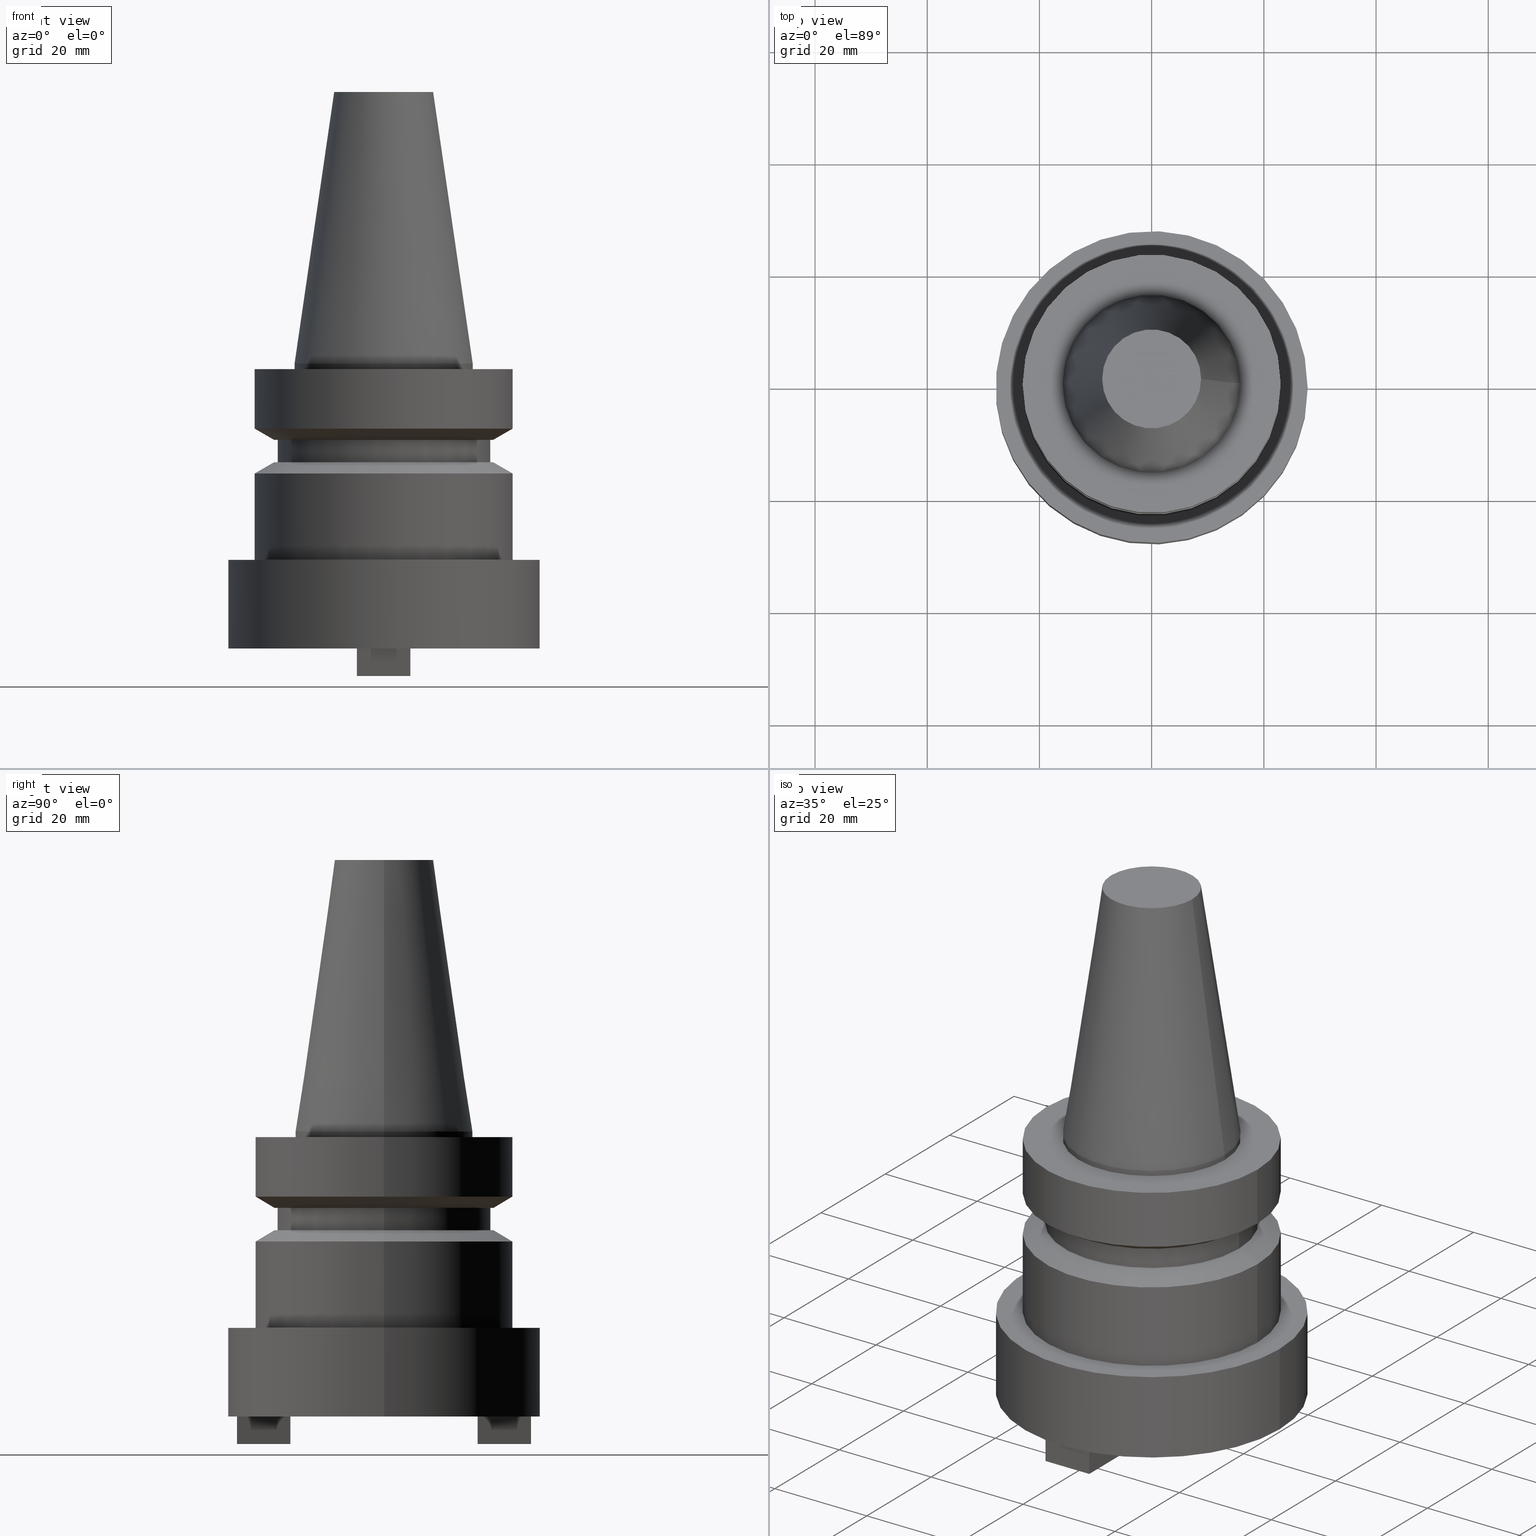
[diagram: canonical four-view strip — front | top / right | iso, engineering-drawing reading convention]
A machine part, canonical four-view strip (front | top / right | iso — engineering-drawing reading convention). The complete STEP part file that produces these views, byte-faithful:
ISO-10303-21;
HEADER;
FILE_DESCRIPTION (( 'STEP AP203' ),
    '1' );
FILE_NAME ('BBT30-SMC1_000-2.stp',
    '2022-03-09T16:43:09',
    ( '' ),
    ( '' ),
    'SwSTEP 2.0',
    'SolidWorks 2021',
    '' );
FILE_SCHEMA (( 'CONFIG_CONTROL_DESIGN' ));
ENDSEC;

DATA;
#1 = AXIS2_PLACEMENT_3D ( 'NONE', #606, #81, #288 ) ;
#2 = LOCAL_TIME ( 10, 43, 9.000000000000000000, #330 ) ;
#3 = VERTEX_POINT ( 'NONE', #572 ) ;
#4 = DIRECTION ( 'NONE',  ( -1.055760352640659537E-14, 1.000000000000000000, 0.000000000000000000 ) ) ;
#5 = ORIENTED_EDGE ( 'NONE', *, *, #506, .F. ) ;
#6 = CARTESIAN_POINT ( 'NONE',  ( -4.765000000000005009, 4.336808689942022666E-16, -55.70000000000000284 ) ) ;
#7 = EDGE_LOOP ( 'NONE', ( #525 ) ) ;
#8 = DIRECTION ( 'NONE',  ( 1.000000000000000000, 0.000000000000000000, 0.000000000000000000 ) ) ;
#9 = AXIS2_PLACEMENT_3D ( 'NONE', #487, #491, #226 ) ;
#10 = AXIS2_PLACEMENT_3D ( 'NONE', #590, #228, #594 ) ;
#11 = DIRECTION ( 'NONE',  ( -0.000000000000000000, -0.000000000000000000, 1.000000000000000000 ) ) ;
#12 = ADVANCED_FACE ( 'NONE', ( #304 ), #50, .T. ) ;
#13 = CARTESIAN_POINT ( 'NONE',  ( -4.765000000000003233, 16.67999999999999972, -50.79999999999999716 ) ) ;
#14 = FACE_BOUND ( 'NONE', #294, .T. ) ;
#15 = FACE_BOUND ( 'NONE', #342, .T. ) ;
#16 = CARTESIAN_POINT ( 'NONE',  ( -4.765000000000003233, -26.20999999999997598, -55.70000000000000284 ) ) ;
#17 = ORIENTED_EDGE ( 'NONE', *, *, #575, .T. ) ;
#18 = EDGE_CURVE ( 'NONE', #672, #250, #177, .T. ) ;
#19 = DIRECTION ( 'NONE',  ( 0.000000000000000000, -0.000000000000000000, 1.000000000000000000 ) ) ;
#20 = EDGE_CURVE ( 'NONE', #110, #250, #379, .T. ) ;
#22 = VECTOR ( 'NONE', #592, 1000.000000000000000 ) ;
#21 = PLANE ( 'NONE',  #668 ) ;
#23 = VECTOR ( 'NONE', #217, 1000.000000000000000 ) ;
#24 = CARTESIAN_POINT ( 'NONE',  ( 0.000000000000000000, 22.99999999999998934, -22.00000000000000000 ) ) ;
#25 = CARTESIAN_POINT ( 'NONE',  ( 0.000000000000000000, 0.000000000000000000, 0.000000000000000000 ) ) ;
#26 = CARTESIAN_POINT ( 'NONE',  ( -4.765000000000005009, 4.336808689942022666E-16, -55.70000000000000284 ) ) ;
#27 = PERSON_AND_ORGANIZATION_ROLE ( 'design_supplier' ) ;
#28 = EDGE_CURVE ( 'NONE', #58, #110, #281, .T. ) ;
#29 = DIRECTION ( 'NONE',  ( -9.101382350350614961E-17, -1.000000000000000000, 0.000000000000000000 ) ) ;
#30 = ORIENTED_EDGE ( 'NONE', *, *, #300, .F. ) ;
#31 = DIRECTION ( 'NONE',  ( 9.101382350350512656E-17, -1.000000000000000000, 0.000000000000000000 ) ) ;
#32 = DIRECTION ( 'NONE',  ( -1.000000000000000000, 0.000000000000000000, -0.000000000000000000 ) ) ;
#33 = AXIS2_PLACEMENT_3D ( 'NONE', #39, #445, #85 ) ;
#34 = EDGE_LOOP ( 'NONE', ( #266, #313, #5, #155 ) ) ;
#35 = AXIS2_PLACEMENT_3D ( 'NONE', #634, #167, #62 ) ;
#36 = CARTESIAN_POINT ( 'NONE',  ( 6.072442304153862371E-15, 16.67999999999999972, -55.70000000000000284 ) ) ;
#37 = CARTESIAN_POINT ( 'NONE',  ( 4.764999999999996128, -26.20999999999998309, -55.70000000000000284 ) ) ;
#38 = ORIENTED_EDGE ( 'NONE', *, *, #235, .T. ) ;
#39 = CARTESIAN_POINT ( 'NONE',  ( 0.000000000000000000, 0.000000000000000000, -1.000000000000000888 ) ) ;
#40 = EDGE_LOOP ( 'NONE', ( #408 ) ) ;
#41 = CARTESIAN_POINT ( 'NONE',  ( 22.99999999999999645, 0.000000000000000000, -1.000000000000000888 ) ) ;
#42 = ADVANCED_FACE ( 'NONE', ( #67, #638 ), #656, .T. ) ;
#43 = ADVANCED_FACE ( 'NONE', ( #14, #430, #168, #165 ), #483, .F. ) ;
#44 = PLANE ( 'NONE',  #579 ) ;
#45 = ORIENTED_EDGE ( 'NONE', *, *, #20, .T. ) ;
#46 = VERTEX_POINT ( 'NONE', #258 ) ;
#47 = CLOSED_SHELL ( 'NONE', ( #43, #577, #82, #158, #94, #103, #533, #504, #42, #400, #678, #213, #630, #212, #378, #597, #675, #299, #471, #68, #118, #12, #295, #287, #100, #326 ) ) ;
#48 = LOCAL_TIME ( 10, 43, 9.000000000000000000, #539 ) ;
#49 = ORIENTED_EDGE ( 'NONE', *, *, #268, .F. ) ;
#50 = PLANE ( 'NONE',  #560 ) ;
#51 = ORIENTED_EDGE ( 'NONE', *, *, #166, .T. ) ;
#52 = UNCERTAINTY_MEASURE_WITH_UNIT (LENGTH_MEASURE( 1.000000000000000082E-05 ), #355, 'distance_accuracy_value', 'NONE');
#53 = FACE_OUTER_BOUND ( 'NONE', #96, .T. ) ;
#54 = CIRCLE ( 'NONE', #310, 5.764999999999999680 ) ;
#55 = CC_DESIGN_APPROVAL ( #311, ( #598 ) ) ;
#56 = ORIENTED_EDGE ( 'NONE', *, *, #247, .F. ) ;
#57 = DIRECTION ( 'NONE',  ( 0.000000000000000000, 0.000000000000000000, -1.000000000000000000 ) ) ;
#58 = VERTEX_POINT ( 'NONE', #535 ) ;
#59 = PLANE ( 'NONE',  #458 ) ;
#60 = EDGE_CURVE ( 'NONE', #512, #512, #128, .T. ) ;
#61 = PLANE ( 'NONE',  #117 ) ;
#62 = DIRECTION ( 'NONE',  ( 1.000000000000000000, 0.000000000000000000, 0.000000000000000000 ) ) ;
#63 = CIRCLE ( 'NONE', #1, 23.00000000000000000 ) ;
#64 = VECTOR ( 'NONE', #183, 1000.000000000000000 ) ;
#65 = CARTESIAN_POINT ( 'NONE',  ( 0.000000000000000000, 0.000000000000000000, -13.60014200631680303 ) ) ;
#66 = FACE_OUTER_BOUND ( 'NONE', #292, .T. ) ;
#67 = FACE_OUTER_BOUND ( 'NONE', #511, .T. ) ;
#68 = ADVANCED_FACE ( 'NONE', ( #371 ), #70, .F. ) ;
#69 = CARTESIAN_POINT ( 'NONE',  ( 4.764999999999993463, 4.336808689942012806E-16, -50.79999999999999716 ) ) ;
#70 = PLANE ( 'NONE',  #626 ) ;
#71 = ORIENTED_EDGE ( 'NONE', *, *, #138, .F. ) ;
#72 = EDGE_CURVE ( 'NONE', #569, #503, #222, .T. ) ;
#73 = LINE ( 'NONE', #76, #75 ) ;
#74 = CARTESIAN_POINT ( 'NONE',  ( -1.908377851221493419E-14, -26.20999999999997954, -50.79999999999999716 ) ) ;
#75 = VECTOR ( 'NONE', #492, 1000.000000000000000 ) ;
#76 = CARTESIAN_POINT ( 'NONE',  ( -4.765000000000002345, -16.68000000000008853, -55.70000000000000284 ) ) ;
#77 = CALENDAR_DATE ( 2022, 9, 3 ) ;
#78 = CARTESIAN_POINT ( 'NONE',  ( -4.765000000000003233, -26.20999999999997598, -50.79999999999999716 ) ) ;
#79 = ORIENTED_EDGE ( 'NONE', *, *, #166, .F. ) ;
#80 = DIRECTION ( 'NONE',  ( -0.000000000000000000, -0.000000000000000000, 1.000000000000000000 ) ) ;
#81 = DIRECTION ( 'NONE',  ( -0.000000000000000000, -0.000000000000000000, 1.000000000000000000 ) ) ;
#82 = ADVANCED_FACE ( 'NONE', ( #649 ), #275, .F. ) ;
#83 = EDGE_LOOP ( 'NONE', ( #145 ) ) ;
#84 = DIRECTION ( 'NONE',  ( 0.000000000000000000, 0.000000000000000000, -1.000000000000000000 ) ) ;
#85 = DIRECTION ( 'NONE',  ( 1.000000000000000000, 0.000000000000000000, 0.000000000000000000 ) ) ;
#86 = ORIENTED_EDGE ( 'NONE', *, *, #328, .T. ) ;
#87 = PRODUCT_DEFINITION_SHAPE ( 'NONE', 'NONE',  #598 ) ;
#88 = SECURITY_CLASSIFICATION ( '', '', #188 ) ;
#89 = VERTEX_POINT ( 'NONE', #456 ) ;
#90 = LINE ( 'NONE', #652, #488 ) ;
#91 = ORIENTED_EDGE ( 'NONE', *, *, #526, .T. ) ;
#92 = EDGE_CURVE ( 'NONE', #437, #573, #585, .T. ) ;
#93 = VERTEX_POINT ( 'NONE', #447 ) ;
#94 = ADVANCED_FACE ( 'NONE', ( #369, #331 ), #399, .T. ) ;
#95 = CARTESIAN_POINT ( 'NONE',  ( 6.072442304153862371E-15, 16.67999999999999972, -50.79999999999999716 ) ) ;
#96 = EDGE_LOOP ( 'NONE', ( #516, #71, #17, #86 ) ) ;
#97 = VERTEX_POINT ( 'NONE', #555 ) ;
#98 = CC_DESIGN_DATE_AND_TIME_ASSIGNMENT ( #385, #435, ( #598 ) ) ;
#99 = EDGE_LOOP ( 'NONE', ( #156 ) ) ;
#100 = ADVANCED_FACE ( 'NONE', ( #315 ), #61, .F. ) ;
#101 = ORIENTED_EDGE ( 'NONE', *, *, #648, .F. ) ;
#102 = APPROVAL_STATUS ( 'not_yet_approved' ) ;
#103 = ADVANCED_FACE ( 'NONE', ( #271, #475 ), #21, .F. ) ;
#104 = ORIENTED_EDGE ( 'NONE', *, *, #176, .T. ) ;
#105 = CARTESIAN_POINT ( 'NONE',  ( 1.761008268204623874E-13, -16.68000000000003524, -50.79999999999999716 ) ) ;
#106 = EDGE_LOOP ( 'NONE', ( #618 ) ) ;
#107 = AXIS2_PLACEMENT_3D ( 'NONE', #122, #636, #325 ) ;
#108 = DIRECTION ( 'NONE',  ( 1.000000000000000000, 0.000000000000000000, 0.000000000000000000 ) ) ;
#109 = AXIS2_PLACEMENT_3D ( 'NONE', #431, #126, #568 ) ;
#110 = VERTEX_POINT ( 'NONE', #596 ) ;
#111 = EDGE_CURVE ( 'NONE', #263, #593, #373, .T. ) ;
#112 = DIRECTION ( 'NONE',  ( -1.000000000000000000, -1.055760352640659537E-14, 0.000000000000000000 ) ) ;
#113 = DIRECTION ( 'NONE',  ( -9.101382350350508958E-17, -1.000000000000000000, 0.000000000000000000 ) ) ;
#114 = DIRECTION ( 'NONE',  ( -0.000000000000000000, -0.000000000000000000, 1.000000000000000000 ) ) ;
#115 = CARTESIAN_POINT ( 'NONE',  ( 4.764999999999995239, -16.67999999999998550, -55.70000000000000284 ) ) ;
#116 = PLANE ( 'NONE',  #416 ) ;
#117 = AXIS2_PLACEMENT_3D ( 'NONE', #383, #278, #640 ) ;
#118 = ADVANCED_FACE ( 'NONE', ( #193 ), #386, .T. ) ;
#119 = AXIS2_PLACEMENT_3D ( 'NONE', #161, #372, #412 ) ;
#120 = DIRECTION ( 'NONE',  ( -1.000000000000000000, 3.640552940140205062E-16, 0.000000000000000000 ) ) ;
#121 = CARTESIAN_POINT ( 'NONE',  ( 4.764999999999997904, 26.21000000000000085, -55.70000000000000284 ) ) ;
#122 = CARTESIAN_POINT ( 'NONE',  ( 0.000000000000000000, 0.000000000000000000, -19.60014200631680836 ) ) ;
#123 = APPROVAL ( #388, 'UNSPECIFIED' ) ;
#124 = DIRECTION ( 'NONE',  ( -1.000000000000000000, 0.000000000000000000, -0.000000000000000000 ) ) ;
#125 = DIRECTION ( 'NONE',  ( -0.000000000000000000, -0.000000000000000000, 1.000000000000000000 ) ) ;
#126 = DIRECTION ( 'NONE',  ( -0.000000000000000000, -0.000000000000000000, 1.000000000000000000 ) ) ;
#128 = CIRCLE ( 'NONE', #476, 22.99999999999999645 ) ;
#127 = FACE_OUTER_BOUND ( 'NONE', #358, .T. ) ;
#129 = VECTOR ( 'NONE', #620, 1000.000000000000000 ) ;
#130 = EDGE_LOOP ( 'NONE', ( #204 ) ) ;
#131 =( GEOMETRIC_REPRESENTATION_CONTEXT ( 3 ) GLOBAL_UNCERTAINTY_ASSIGNED_CONTEXT ( ( #52 ) ) GLOBAL_UNIT_ASSIGNED_CONTEXT ( ( #355, #505, #499 ) ) REPRESENTATION_CONTEXT ( 'NONE', 'WORKASPACE' ) );
#132 = CARTESIAN_POINT ( 'NONE',  ( 9.541889256107473405E-15, 26.21000000000000085, -55.70000000000000284 ) ) ;
#133 = FACE_OUTER_BOUND ( 'NONE', #210, .T. ) ;
#134 = ORIENTED_EDGE ( 'NONE', *, *, #60, .T. ) ;
#135 = CARTESIAN_POINT ( 'NONE',  ( 0.000000000000000000, 0.000000000000000000, -55.70000000000000284 ) ) ;
#136 = EDGE_LOOP ( 'NONE', ( #104 ) ) ;
#137 = VERTEX_POINT ( 'NONE', #149 ) ;
#138 = EDGE_CURVE ( 'NONE', #481, #569, #90, .T. ) ;
#139 = CARTESIAN_POINT ( 'NONE',  ( 1.761008268204623874E-13, -16.68000000000003524, -55.70000000000000284 ) ) ;
#140 = EDGE_CURVE ( 'NONE', #227, #503, #293, .T. ) ;
#141 = ORIENTED_EDGE ( 'NONE', *, *, #176, .F. ) ;
#142 = AXIS2_PLACEMENT_3D ( 'NONE', #637, #370, #272 ) ;
#143 = CARTESIAN_POINT ( 'NONE',  ( 4.764999999999997904, 26.21000000000000085, -55.70000000000000284 ) ) ;
#144 = CARTESIAN_POINT ( 'NONE',  ( 4.764999999999985469, -2.168404344971001768E-15, -50.79999999999999716 ) ) ;
#145 = ORIENTED_EDGE ( 'NONE', *, *, #609, .T. ) ;
#146 = PLANE ( 'NONE',  #185 ) ;
#147 = FACE_OUTER_BOUND ( 'NONE', #194, .T. ) ;
#148 = ORIENTED_EDGE ( 'NONE', *, *, #648, .T. ) ;
#149 = CARTESIAN_POINT ( 'NONE',  ( 5.764999999999999680, 0.000000000000000000, -50.79999999999999716 ) ) ;
#150 = ORIENTED_EDGE ( 'NONE', *, *, #140, .T. ) ;
#151 = AXIS2_PLACEMENT_3D ( 'NONE', #613, #610, #600 ) ;
#152 = APPLICATION_PROTOCOL_DEFINITION ( 'international standard', 'config_control_design', 1994, #518 ) ;
#153 = CIRCLE ( 'NONE', #35, 23.00000000000000355 ) ;
#154 = APPROVAL_PERSON_ORGANIZATION ( #595, #123, #225 ) ;
#155 = ORIENTED_EDGE ( 'NONE', *, *, #268, .T. ) ;
#156 = ORIENTED_EDGE ( 'NONE', *, *, #622, .F. ) ;
#157 = CARTESIAN_POINT ( 'NONE',  ( 4.764999999999993463, 4.336808689942012806E-16, -55.70000000000000284 ) ) ;
#158 = ADVANCED_FACE ( 'NONE', ( #284, #133 ), #297, .T. ) ;
#159 = ORIENTED_EDGE ( 'NONE', *, *, #650, .T. ) ;
#160 = EDGE_CURVE ( 'NONE', #612, #612, #196, .T. ) ;
#161 = CARTESIAN_POINT ( 'NONE',  ( 0.000000000000000000, 0.000000000000000000, 0.000000000000000000 ) ) ;
#162 = CIRCLE ( 'NONE', #646, 19.53589838486230690 ) ;
#163 = CARTESIAN_POINT ( 'NONE',  ( -4.765000000000000568, 4.336808689942069012E-16, -55.70000000000000284 ) ) ;
#164 = CARTESIAN_POINT ( 'NONE',  ( 4.764999999999995239, -16.67999999999998550, -55.70000000000000284 ) ) ;
#165 = FACE_BOUND ( 'NONE', #214, .T. ) ;
#166 = EDGE_CURVE ( 'NONE', #93, #93, #366, .T. ) ;
#167 = DIRECTION ( 'NONE',  ( -0.000000000000000000, -0.000000000000000000, 1.000000000000000000 ) ) ;
#168 = FACE_OUTER_BOUND ( 'NONE', #624, .T. ) ;
#169 = ORIENTED_EDGE ( 'NONE', *, *, #670, .T. ) ;
#170 = FACE_BOUND ( 'NONE', #406, .T. ) ;
#171 = DATE_AND_TIME ( #605, #48 ) ;
#172 = AXIS2_PLACEMENT_3D ( 'NONE', #608, #187, #333 ) ;
#173 = DIRECTION ( 'NONE',  ( -1.000000000000000000, 0.000000000000000000, -0.000000000000000000 ) ) ;
#174 = EDGE_LOOP ( 'NONE', ( #662 ) ) ;
#175 = CARTESIAN_POINT ( 'NONE',  ( 0.000000000000000000, 0.000000000000000000, -17.60014200631680836 ) ) ;
#176 = EDGE_CURVE ( 'NONE', #296, #296, #319, .T. ) ;
#177 = LINE ( 'NONE', #74, #645 ) ;
#178 = DIRECTION ( 'NONE',  ( 1.000000000000000000, 0.000000000000000000, 0.000000000000000000 ) ) ;
#179 = CYLINDRICAL_SURFACE ( 'NONE', #209, 27.79999999999999716 ) ;
#180 = EDGE_CURVE ( 'NONE', #437, #58, #448, .T. ) ;
#181 = FACE_OUTER_BOUND ( 'NONE', #455, .T. ) ;
#182 = PERSON_AND_ORGANIZATION ( #472, #443 ) ;
#184 = VECTOR ( 'NONE', #507, 1000.000000000000000 ) ;
#183 = DIRECTION ( 'NONE',  ( -4.550691175175254109E-16, -1.000000000000000000, 0.000000000000000000 ) ) ;
#185 = AXIS2_PLACEMENT_3D ( 'NONE', #509, #84, #559 ) ;
#186 = EDGE_LOOP ( 'NONE', ( #134 ) ) ;
#187 = DIRECTION ( 'NONE',  ( 0.000000000000000000, 0.000000000000000000, -1.000000000000000000 ) ) ;
#188 = SECURITY_CLASSIFICATION_LEVEL ( 'unclassified' ) ;
#189 = CARTESIAN_POINT ( 'NONE',  ( -4.765000000000000568, 4.336808689942069012E-16, -50.79999999999999716 ) ) ;
#190 = VERTEX_POINT ( 'NONE', #347 ) ;
#191 = CARTESIAN_POINT ( 'NONE',  ( 4.764999999999996128, -26.20999999999998309, -50.79999999999999716 ) ) ;
#192 = EDGE_CURVE ( 'NONE', #3, #227, #343, .T. ) ;
#193 = FACE_OUTER_BOUND ( 'NONE', #34, .T. ) ;
#194 = EDGE_LOOP ( 'NONE', ( #657 ) ) ;
#195 = CARTESIAN_POINT ( 'NONE',  ( 0.000000000000000000, 0.000000000000000000, -22.00000000000000000 ) ) ;
#196 = CIRCLE ( 'NONE', #440, 15.87500000000000000 ) ;
#197 = ORIENTED_EDGE ( 'NONE', *, *, #380, .T. ) ;
#198 = CIRCLE ( 'NONE', #109, 27.79999999999999716 ) ;
#199 = LINE ( 'NONE', #143, #489 ) ;
#200 = FACE_OUTER_BOUND ( 'NONE', #298, .T. ) ;
#201 = ORIENTED_EDGE ( 'NONE', *, *, #192, .T. ) ;
#202 = DIRECTION ( 'NONE',  ( -1.000000000000000000, 3.640552940140205062E-16, 0.000000000000000000 ) ) ;
#203 = APPLICATION_CONTEXT ( 'configuration controlled 3d designs of mechanical parts and assemblies' ) ;
#204 = ORIENTED_EDGE ( 'NONE', *, *, #360, .T. ) ;
#205 = CARTESIAN_POINT ( 'NONE',  ( 27.79999999999999716, 0.000000000000000000, -34.99999999999999289 ) ) ;
#206 = ORIENTED_EDGE ( 'NONE', *, *, #180, .T. ) ;
#207 = VECTOR ( 'NONE', #562, 1000.000000000000000 ) ;
#208 = CARTESIAN_POINT ( 'NONE',  ( 0.000000000000000000, 0.000000000000000000, 0.000000000000000000 ) ) ;
#209 = AXIS2_PLACEMENT_3D ( 'NONE', #252, #454, #617 ) ;
#210 = EDGE_LOOP ( 'NONE', ( #426 ) ) ;
#211 = FACE_OUTER_BOUND ( 'NONE', #365, .T. ) ;
#212 = ADVANCED_FACE ( 'NONE', ( #236, #350 ), #179, .T. ) ;
#213 = ADVANCED_FACE ( 'NONE', ( #127, #337 ), #661, .T. ) ;
#214 = EDGE_LOOP ( 'NONE', ( #633, #308, #403, #223 ) ) ;
#215 = PLANE ( 'NONE',  #257 ) ;
#216 = DIRECTION ( 'NONE',  ( -1.000000000000000000, 9.101382350350614961E-17, 0.000000000000000000 ) ) ;
#217 = DIRECTION ( 'NONE',  ( 9.101382350350512656E-17, -1.000000000000000000, 0.000000000000000000 ) ) ;
#218 = AXIS2_PLACEMENT_3D ( 'NONE', #423, #80, #178 ) ;
#219 = CARTESIAN_POINT ( 'NONE',  ( 0.000000000000000000, 19.00000000000000355, -17.60014200631680481 ) ) ;
#220 = EDGE_CURVE ( 'NONE', #190, #250, #549, .T. ) ;
#221 = DIRECTION ( 'NONE',  ( -0.000000000000000000, -0.000000000000000000, 1.000000000000000000 ) ) ;
#222 = LINE ( 'NONE', #545, #523 ) ;
#223 = ORIENTED_EDGE ( 'NONE', *, *, #72, .T. ) ;
#224 = CARTESIAN_POINT ( 'NONE',  ( 0.000000000000000000, 0.000000000000000000, 48.39999999999998437 ) ) ;
#225 = APPROVAL_ROLE ( '' ) ;
#226 = DIRECTION ( 'NONE',  ( 1.000000000000000000, 0.000000000000000000, 0.000000000000000000 ) ) ;
#227 = VERTEX_POINT ( 'NONE', #557 ) ;
#228 = DIRECTION ( 'NONE',  ( -0.000000000000000000, -0.000000000000000000, 1.000000000000000000 ) ) ;
#229 = CALENDAR_DATE ( 2022, 9, 3 ) ;
#230 = AXIS2_PLACEMENT_3D ( 'NONE', #324, #19, #428 ) ;
#231 = DIRECTION ( 'NONE',  ( 0.000000000000000000, 0.000000000000000000, -1.000000000000000000 ) ) ;
#232 = ADVANCED_BREP_SHAPE_REPRESENTATION ( 'BBT30-SMC1_000-2', ( #452, #444 ), #131 ) ;
#233 = CYLINDRICAL_SURFACE ( 'NONE', #669, 19.00000000000000355 ) ;
#234 = DATE_TIME_ROLE ( 'classification_date' ) ;
#235 = EDGE_CURVE ( 'NONE', #407, #407, #367, .T. ) ;
#236 = FACE_OUTER_BOUND ( 'NONE', #674, .T. ) ;
#237 = CC_DESIGN_PERSON_AND_ORGANIZATION_ASSIGNMENT ( #424, #542, ( #571 ) ) ;
#238 = DIRECTION ( 'NONE',  ( 0.000000000000000000, -0.000000000000000000, 1.000000000000000000 ) ) ;
#239 = COORDINATED_UNIVERSAL_TIME_OFFSET ( 6, 0, .BEHIND. ) ;
#240 = DIRECTION ( 'NONE',  ( 1.000000000000000000, 0.000000000000000000, 0.000000000000000000 ) ) ;
#241 = ORIENTED_EDGE ( 'NONE', *, *, #658, .T. ) ;
#242 = CARTESIAN_POINT ( 'NONE',  ( 4.764999999999995239, -16.67999999999998906, -50.79999999999999716 ) ) ;
#243 = APPROVAL_STATUS ( 'not_yet_approved' ) ;
#244 = VECTOR ( 'NONE', #583, 1000.000000000000000 ) ;
#245 = DIRECTION ( 'NONE',  ( 1.000000000000000000, 0.000000000000000000, 0.000000000000000000 ) ) ;
#246 = ORIENTED_EDGE ( 'NONE', *, *, #20, .F. ) ;
#247 = EDGE_CURVE ( 'NONE', #354, #672, #502, .T. ) ;
#248 = FACE_OUTER_BOUND ( 'NONE', #410, .T. ) ;
#249 = CARTESIAN_POINT ( 'NONE',  ( 4.764999999999985469, -2.168404344971001768E-15, -55.70000000000000284 ) ) ;
#250 = VERTEX_POINT ( 'NONE', #78 ) ;
#251 = APPLICATION_PROTOCOL_DEFINITION ( 'international standard', 'config_control_design', 1994, #203 ) ;
#252 = CARTESIAN_POINT ( 'NONE',  ( 0.000000000000000000, 0.000000000000000000, 0.000000000000000000 ) ) ;
#253 = EDGE_LOOP ( 'NONE', ( #446 ) ) ;
#254 = VERTEX_POINT ( 'NONE', #665 ) ;
#255 = DIRECTION ( 'NONE',  ( -1.000000000000000000, 3.640552940140203583E-16, 0.000000000000000000 ) ) ;
#256 = ORIENTED_EDGE ( 'NONE', *, *, #451, .F. ) ;
#257 = AXIS2_PLACEMENT_3D ( 'NONE', #530, #57, #468 ) ;
#258 = CARTESIAN_POINT ( 'NONE',  ( 23.00000000000000000, 0.000000000000000000, -34.99999999999999289 ) ) ;
#259 = ORIENTED_EDGE ( 'NONE', *, *, #658, .F. ) ;
#260 = CARTESIAN_POINT ( 'NONE',  ( 5.764999999999997904, 0.000000000000000000, -22.00000000000000000 ) ) ;
#261 = EDGE_LOOP ( 'NONE', ( #460, #246, #629, #344 ) ) ;
#262 = DIRECTION ( 'NONE',  ( 0.000000000000000000, 0.000000000000000000, 1.000000000000000000 ) ) ;
#263 = VERTEX_POINT ( 'NONE', #436 ) ;
#264 = AXIS2_PLACEMENT_3D ( 'NONE', #24, #238, #279 ) ;
#265 = CARTESIAN_POINT ( 'NONE',  ( 0.000000000000000000, 0.000000000000000000, -50.79999999999999716 ) ) ;
#266 = ORIENTED_EDGE ( 'NONE', *, *, #111, .T. ) ;
#267 = CARTESIAN_POINT ( 'NONE',  ( 9.541889256107473405E-15, 26.21000000000000085, -50.79999999999999716 ) ) ;
#268 = EDGE_CURVE ( 'NONE', #611, #263, #655, .T. ) ;
#269 = ORIENTED_EDGE ( 'NONE', *, *, #283, .F. ) ;
#270 = DIRECTION ( 'NONE',  ( -0.000000000000000000, -0.000000000000000000, 1.000000000000000000 ) ) ;
#271 = FACE_BOUND ( 'NONE', #99, .T. ) ;
#272 = DIRECTION ( 'NONE',  ( -1.000000000000000000, 3.640552940140203583E-16, 0.000000000000000000 ) ) ;
#273 = DIRECTION ( 'NONE',  ( 1.000000000000000000, 0.000000000000000000, 0.000000000000000000 ) ) ;
#274 = LINE ( 'NONE', #544, #375 ) ;
#275 = PLANE ( 'NONE',  #309 ) ;
#276 = FACE_OUTER_BOUND ( 'NONE', #106, .T. ) ;
#277 = DATE_AND_TIME ( #643, #2 ) ;
#278 = DIRECTION ( 'NONE',  ( 7.281105880280407166E-16, 1.000000000000000000, 0.000000000000000000 ) ) ;
#279 = DIRECTION ( 'NONE',  ( 1.000000000000000000, 0.000000000000000000, 0.000000000000000000 ) ) ;
#280 = APPROVAL_DATE_TIME ( #486, #123 ) ;
#281 = LINE ( 'NONE', #163, #244 ) ;
#282 = FACE_BOUND ( 'NONE', #301, .T. ) ;
#283 = EDGE_CURVE ( 'NONE', #46, #46, #63, .T. ) ;
#284 = FACE_OUTER_BOUND ( 'NONE', #519, .T. ) ;
#285 = ORIENTED_EDGE ( 'NONE', *, *, #111, .F. ) ;
#286 = PLANE ( 'NONE',  #230 ) ;
#287 = ADVANCED_FACE ( 'NONE', ( #663 ), #59, .F. ) ;
#288 = DIRECTION ( 'NONE',  ( 1.000000000000000000, 0.000000000000000000, 0.000000000000000000 ) ) ;
#289 = ORIENTED_EDGE ( 'NONE', *, *, #92, .T. ) ;
#290 = CARTESIAN_POINT ( 'NONE',  ( 27.80000000000000071, 0.000000000000000000, -50.79999999999999716 ) ) ;
#291 = CARTESIAN_POINT ( 'NONE',  ( 0.000000000000000000, 0.000000000000000000, 48.39999999999998437 ) ) ;
#292 = EDGE_LOOP ( 'NONE', ( #413 ) ) ;
#293 = LINE ( 'NONE', #95, #184 ) ;
#294 = EDGE_LOOP ( 'NONE', ( #348, #615, #449, #338 ) ) ;
#295 = ADVANCED_FACE ( 'NONE', ( #200 ), #44, .T. ) ;
#296 = VERTEX_POINT ( 'NONE', #565 ) ;
#297 = CYLINDRICAL_SURFACE ( 'NONE', #151, 22.99999999999999289 ) ;
#298 = EDGE_LOOP ( 'NONE', ( #256, #621, #206, #529 ) ) ;
#299 = ADVANCED_FACE ( 'NONE', ( #53 ), #116, .T. ) ;
#300 = EDGE_CURVE ( 'NONE', #3, #569, #639, .T. ) ;
#301 = EDGE_LOOP ( 'NONE', ( #159 ) ) ;
#302 = VECTOR ( 'NONE', #31, 1000.000000000000000 ) ;
#303 = DIRECTION ( 'NONE',  ( 3.640552940140205062E-16, 1.000000000000000000, 0.000000000000000000 ) ) ;
#304 = FACE_OUTER_BOUND ( 'NONE', #397, .T. ) ;
#305 = MECHANICAL_CONTEXT ( 'NONE', #203, 'mechanical' ) ;
#306 = ORIENTED_EDGE ( 'NONE', *, *, #138, .T. ) ;
#307 = CARTESIAN_POINT ( 'NONE',  ( 4.764999999999996128, -26.20999999999998309, -55.70000000000000284 ) ) ;
#308 = ORIENTED_EDGE ( 'NONE', *, *, #192, .F. ) ;
#309 = AXIS2_PLACEMENT_3D ( 'NONE', #421, #644, #173 ) ;
#310 = AXIS2_PLACEMENT_3D ( 'NONE', #376, #599, #381 ) ;
#311 = APPROVAL ( #102, 'UNSPECIFIED' ) ;
#312 = CARTESIAN_POINT ( 'NONE',  ( 0.000000000000000000, 0.000000000000000000, -17.60014200631680836 ) ) ;
#313 = ORIENTED_EDGE ( 'NONE', *, *, #575, .F. ) ;
#314 = FACE_OUTER_BOUND ( 'NONE', #641, .T. ) ;
#315 = FACE_OUTER_BOUND ( 'NONE', #261, .T. ) ;
#316 = LINE ( 'NONE', #105, #536 ) ;
#317 = CC_DESIGN_PERSON_AND_ORGANIZATION_ASSIGNMENT ( #552, #382, ( #88 ) ) ;
#318 = DIRECTION ( 'NONE',  ( -1.000000000000000000, 0.000000000000000000, -0.000000000000000000 ) ) ;
#319 = CIRCLE ( 'NONE', #33, 15.87500000000000000 ) ;
#320 = CIRCLE ( 'NONE', #335, 27.80000000000000071 ) ;
#321 = CARTESIAN_POINT ( 'NONE',  ( -4.765000000000002345, 26.21000000000000441, -50.79999999999999716 ) ) ;
#322 = APPROVAL_DATE_TIME ( #277, #311 ) ;
#323 = DIRECTION ( 'NONE',  ( -9.101382350350614961E-17, -1.000000000000000000, 0.000000000000000000 ) ) ;
#324 = CARTESIAN_POINT ( 'NONE',  ( 0.000000000000000000, 19.53589838486230690, -13.60014200631680303 ) ) ;
#325 = DIRECTION ( 'NONE',  ( -1.000000000000000000, 0.000000000000000000, 0.000000000000000000 ) ) ;
#326 = ADVANCED_FACE ( 'NONE', ( #314 ), #215, .T. ) ;
#327 = ORIENTED_EDGE ( 'NONE', *, *, #28, .T. ) ;
#328 = EDGE_CURVE ( 'NONE', #593, #503, #532, .T. ) ;
#329 = LINE ( 'NONE', #132, #501 ) ;
#330 = COORDINATED_UNIVERSAL_TIME_OFFSET ( 6, 0, .BEHIND. ) ;
#331 = FACE_OUTER_BOUND ( 'NONE', #186, .T. ) ;
#332 = CC_DESIGN_PERSON_AND_ORGANIZATION_ASSIGNMENT ( #182, #27, ( #571 ) ) ;
#333 = DIRECTION ( 'NONE',  ( -1.000000000000000000, 0.000000000000000000, 0.000000000000000000 ) ) ;
#334 = VECTOR ( 'NONE', #125, 1000.000000000000000 ) ;
#335 = AXIS2_PLACEMENT_3D ( 'NONE', #265, #114, #671 ) ;
#336 = CC_DESIGN_APPROVAL ( #123, ( #571 ) ) ;
#337 = FACE_OUTER_BOUND ( 'NONE', #136, .T. ) ;
#338 = ORIENTED_EDGE ( 'NONE', *, *, #556, .F. ) ;
#339 = CARTESIAN_POINT ( 'NONE',  ( 0.000000000000000000, 0.000000000000000000, -13.60014200631680303 ) ) ;
#340 = PERSON_AND_ORGANIZATION_ROLE ( 'creator' ) ;
#341 = DIRECTION ( 'NONE',  ( -0.000000000000000000, -0.000000000000000000, 1.000000000000000000 ) ) ;
#342 = EDGE_LOOP ( 'NONE', ( #269 ) ) ;
#343 = LINE ( 'NONE', #144, #207 ) ;
#344 = ORIENTED_EDGE ( 'NONE', *, *, #247, .T. ) ;
#345 = CARTESIAN_POINT ( 'NONE',  ( 23.00000000000000355, 0.000000000000000000, -11.60014200631680126 ) ) ;
#347 = CARTESIAN_POINT ( 'NONE',  ( -4.765000000000002345, -16.68000000000008498, -50.79999999999999716 ) ) ;
#346 = CIRCLE ( 'NONE', #546, 19.00000000000000355 ) ;
#348 = ORIENTED_EDGE ( 'NONE', *, *, #451, .T. ) ;
#349 = FACE_OUTER_BOUND ( 'NONE', #495, .T. ) ;
#350 = FACE_OUTER_BOUND ( 'NONE', #130, .T. ) ;
#351 = ORIENTED_EDGE ( 'NONE', *, *, #453, .T. ) ;
#352 = EDGE_CURVE ( 'NONE', #404, #404, #153, .T. ) ;
#353 = CARTESIAN_POINT ( 'NONE',  ( 15.87500000000000000, 0.000000000000000000, 0.000000000000000000 ) ) ;
#354 = VERTEX_POINT ( 'NONE', #307 ) ;
#355 =( LENGTH_UNIT ( ) NAMED_UNIT ( * ) SI_UNIT ( .MILLI., .METRE. ) );
#356 = VECTOR ( 'NONE', #120, 1000.000000000000000 ) ;
#357 = AXIS2_PLACEMENT_3D ( 'NONE', #291, #390, #566 ) ;
#358 = EDGE_LOOP ( 'NONE', ( #464 ) ) ;
#359 = APPROVAL_ROLE ( '' ) ;
#360 = EDGE_CURVE ( 'NONE', #395, #395, #320, .T. ) ;
#361 = EDGE_LOOP ( 'NONE', ( #667, #56, #473, #289 ) ) ;
#362 = CYLINDRICAL_SURFACE ( 'NONE', #561, 23.00000000000000000 ) ;
#363 = EDGE_LOOP ( 'NONE', ( #30, #554, #394, #306 ) ) ;
#364 = DIRECTION ( 'NONE',  ( 9.101382350350512656E-17, -1.000000000000000000, 0.000000000000000000 ) ) ;
#365 = EDGE_LOOP ( 'NONE', ( #38 ) ) ;
#366 = CIRCLE ( 'NONE', #534, 8.816600212367498912 ) ;
#367 = CIRCLE ( 'NONE', #589, 5.764999999999997904 ) ;
#368 = CARTESIAN_POINT ( 'NONE',  ( 0.000000000000000000, 0.000000000000000000, 48.39999999999998437 ) ) ;
#369 = FACE_BOUND ( 'NONE', #558, .T. ) ;
#370 = DIRECTION ( 'NONE',  ( 3.640552940140203583E-16, 1.000000000000000000, 0.000000000000000000 ) ) ;
#371 = FACE_OUTER_BOUND ( 'NONE', #607, .T. ) ;
#372 = DIRECTION ( 'NONE',  ( -0.000000000000000000, -0.000000000000000000, 1.000000000000000000 ) ) ;
#373 = LINE ( 'NONE', #588, #356 ) ;
#374 = ORIENTED_EDGE ( 'NONE', *, *, #513, .T. ) ;
#375 = VECTOR ( 'NONE', #651, 1000.000000000000000 ) ;
#376 = CARTESIAN_POINT ( 'NONE',  ( 0.000000000000000000, 0.000000000000000000, -50.79999999999999716 ) ) ;
#377 = APPROVAL_ROLE ( '' ) ;
#378 = ADVANCED_FACE ( 'NONE', ( #474, #211 ), #632, .F. ) ;
#379 = LINE ( 'NONE', #16, #334 ) ;
#380 = EDGE_CURVE ( 'NONE', #437, #354, #584, .T. ) ;
#381 = DIRECTION ( 'NONE',  ( 1.000000000000000000, 0.000000000000000000, 0.000000000000000000 ) ) ;
#382 = PERSON_AND_ORGANIZATION_ROLE ( 'classification_officer' ) ;
#383 = CARTESIAN_POINT ( 'NONE',  ( -1.908377851221493419E-14, -26.20999999999997954, -55.70000000000000284 ) ) ;
#384 = CARTESIAN_POINT ( 'NONE',  ( 0.000000000000000000, 27.79999999999999716, -34.99999999999999289 ) ) ;
#385 = DATE_AND_TIME ( #660, #548 ) ;
#386 = PLANE ( 'NONE',  #570 ) ;
#387 = FACE_OUTER_BOUND ( 'NONE', #174, .T. ) ;
#388 = APPROVAL_STATUS ( 'not_yet_approved' ) ;
#389 = AXIS2_PLACEMENT_3D ( 'NONE', #36, #303, #202 ) ;
#390 = DIRECTION ( 'NONE',  ( -0.000000000000000000, -0.000000000000000000, 1.000000000000000000 ) ) ;
#391 = ORIENTED_EDGE ( 'NONE', *, *, #422, .T. ) ;
#392 = LINE ( 'NONE', #69, #302 ) ;
#393 = DIRECTION ( 'NONE',  ( -0.000000000000000000, -0.000000000000000000, 1.000000000000000000 ) ) ;
#394 = ORIENTED_EDGE ( 'NONE', *, *, #506, .T. ) ;
#395 = VERTEX_POINT ( 'NONE', #290 ) ;
#396 = DIRECTION ( 'NONE',  ( -0.000000000000000000, -0.000000000000000000, 1.000000000000000000 ) ) ;
#397 = EDGE_LOOP ( 'NONE', ( #631, #567, #327, #45 ) ) ;
#398 = CARTESIAN_POINT ( 'NONE',  ( 22.99999999999999645, 0.000000000000000000, -19.60014200631680836 ) ) ;
#399 = CONICAL_SURFACE ( 'NONE', #107, 22.99999999999999645, 1.047197551196588972 ) ;
#400 = ADVANCED_FACE ( 'NONE', ( #147, #578 ), #362, .T. ) ;
#402 = DIRECTION ( 'NONE',  ( -1.000000000000000000, -1.055760352640659537E-14, 0.000000000000000000 ) ) ;
#401 = AXIS2_PLACEMENT_3D ( 'NONE', #384, #485, #124 ) ;
#403 = ORIENTED_EDGE ( 'NONE', *, *, #300, .T. ) ;
#404 = VERTEX_POINT ( 'NONE', #345 ) ;
#405 = DIRECTION ( 'NONE',  ( -1.000000000000000000, 9.101382350350508958E-17, 0.000000000000000000 ) ) ;
#406 = EDGE_LOOP ( 'NONE', ( #79 ) ) ;
#407 = VERTEX_POINT ( 'NONE', #260 ) ;
#408 = ORIENTED_EDGE ( 'NONE', *, *, #650, .F. ) ;
#409 = CIRCLE ( 'NONE', #514, 19.53589838486230690 ) ;
#410 = EDGE_LOOP ( 'NONE', ( #91 ) ) ;
#411 = EDGE_LOOP ( 'NONE', ( #351 ) ) ;
#412 = DIRECTION ( 'NONE',  ( 1.000000000000000000, 0.000000000000000000, 0.000000000000000000 ) ) ;
#413 = ORIENTED_EDGE ( 'NONE', *, *, #160, .T. ) ;
#414 = DIRECTION ( 'NONE',  ( -1.000000000000000000, -1.055760352640659537E-14, 0.000000000000000000 ) ) ;
#415 = DIRECTION ( 'NONE',  ( -4.550691175175254109E-16, -1.000000000000000000, 0.000000000000000000 ) ) ;
#416 = AXIS2_PLACEMENT_3D ( 'NONE', #6, #405, #522 ) ;
#417 = APPROVAL_PERSON_ORGANIZATION ( #432, #459, #377 ) ;
#418 = FACE_OUTER_BOUND ( 'NONE', #363, .T. ) ;
#419 = DIRECTION ( 'NONE',  ( -1.000000000000000000, 4.550691175175254109E-16, 0.000000000000000000 ) ) ;
#420 = PLANE ( 'NONE',  #142 ) ;
#421 = CARTESIAN_POINT ( 'NONE',  ( 0.000000000000000000, 8.816600212367498912, 48.39999999999999147 ) ) ;
#422 = EDGE_CURVE ( 'NONE', #354, #110, #574, .T. ) ;
#423 = CARTESIAN_POINT ( 'NONE',  ( 0.000000000000000000, 0.000000000000000000, -1.000000000000000888 ) ) ;
#424 = PERSON_AND_ORGANIZATION ( #472, #443 ) ;
#425 = DIRECTION ( 'NONE',  ( -1.000000000000000000, 7.281105880280407166E-16, 0.000000000000000000 ) ) ;
#426 = ORIENTED_EDGE ( 'NONE', *, *, #283, .T. ) ;
#427 = AXIS2_PLACEMENT_3D ( 'NONE', #65, #11, #273 ) ;
#428 = DIRECTION ( 'NONE',  ( 1.000000000000000000, 0.000000000000000000, 0.000000000000000000 ) ) ;
#429 = SHAPE_DEFINITION_REPRESENTATION ( #87, #232 ) ;
#430 = FACE_BOUND ( 'NONE', #550, .T. ) ;
#431 = CARTESIAN_POINT ( 'NONE',  ( 0.000000000000000000, 0.000000000000000000, -34.99999999999999289 ) ) ;
#432 = PERSON_AND_ORGANIZATION ( #472, #443 ) ;
#433 = DIRECTION ( 'NONE',  ( -0.000000000000000000, -0.000000000000000000, 1.000000000000000000 ) ) ;
#434 = DIRECTION ( 'NONE',  ( 1.000000000000000000, 0.000000000000000000, 0.000000000000000000 ) ) ;
#435 = DATE_TIME_ROLE ( 'creation_date' ) ;
#436 = CARTESIAN_POINT ( 'NONE',  ( 4.764999999999993463, 16.67999999999999972, -55.70000000000000284 ) ) ;
#437 = VERTEX_POINT ( 'NONE', #164 ) ;
#438 = CC_DESIGN_PERSON_AND_ORGANIZATION_ASSIGNMENT ( #442, #340, ( #598 ) ) ;
#439 = DIRECTION ( 'NONE',  ( -1.000000000000000000, 3.640552940140203583E-16, 0.000000000000000000 ) ) ;
#440 = AXIS2_PLACEMENT_3D ( 'NONE', #25, #396, #666 ) ;
#441 = VECTOR ( 'NONE', #221, 1000.000000000000000 ) ;
#442 = PERSON_AND_ORGANIZATION ( #472, #443 ) ;
#443 = ORGANIZATION ( 'UNSPECIFIED', 'UNSPECIFIED', '' ) ;
#444 = AXIS2_PLACEMENT_3D ( 'NONE', #208, #262, #520 ) ;
#445 = DIRECTION ( 'NONE',  ( -0.000000000000000000, -0.000000000000000000, 1.000000000000000000 ) ) ;
#446 = ORIENTED_EDGE ( 'NONE', *, *, #622, .T. ) ;
#447 = CARTESIAN_POINT ( 'NONE',  ( 8.816600212367498912, 0.000000000000000000, 48.39999999999999858 ) ) ;
#448 = LINE ( 'NONE', #139, #500 ) ;
#449 = ORIENTED_EDGE ( 'NONE', *, *, #18, .F. ) ;
#450 = PRODUCT ( 'BBT30-SMC1_000-2', 'BBT30-SMC1_000-2', '', ( #305 ) ) ;
#451 = EDGE_CURVE ( 'NONE', #573, #190, #316, .T. ) ;
#452 = MANIFOLD_SOLID_BREP ( 'Boss-Extrude1', #47 ) ;
#453 = EDGE_CURVE ( 'NONE', #97, #97, #409, .T. ) ;
#454 = DIRECTION ( 'NONE',  ( -0.000000000000000000, -0.000000000000000000, 1.000000000000000000 ) ) ;
#455 = EDGE_LOOP ( 'NONE', ( #241 ) ) ;
#456 = CARTESIAN_POINT ( 'NONE',  ( 19.00000000000000355, 0.000000000000000000, -13.60014200631680303 ) ) ;
#458 = AXIS2_PLACEMENT_3D ( 'NONE', #470, #510, #364 ) ;
#457 = CARTESIAN_POINT ( 'NONE',  ( -4.765000000000003233, 16.68000000000000327, -55.70000000000000284 ) ) ;
#459 = APPROVAL ( #243, 'UNSPECIFIED' ) ;
#460 = ORIENTED_EDGE ( 'NONE', *, *, #18, .T. ) ;
#461 = PLANE ( 'NONE',  #389 ) ;
#462 = ORIENTED_EDGE ( 'NONE', *, *, #513, .F. ) ;
#463 = CARTESIAN_POINT ( 'NONE',  ( 19.00000000000000355, 0.000000000000000000, -17.60014200631680836 ) ) ;
#464 = ORIENTED_EDGE ( 'NONE', *, *, #160, .F. ) ;
#465 = PERSON_AND_ORGANIZATION_ROLE ( 'design_owner' ) ;
#466 = CONICAL_SURFACE ( 'NONE', #172, 15.87500000000000000, 0.1448138426689024039 ) ;
#467 = ORIENTED_EDGE ( 'NONE', *, *, #352, .F. ) ;
#468 = DIRECTION ( 'NONE',  ( -1.000000000000000000, 0.000000000000000000, -0.000000000000000000 ) ) ;
#469 = ORIENTED_EDGE ( 'NONE', *, *, #453, .F. ) ;
#470 = CARTESIAN_POINT ( 'NONE',  ( 4.764999999999993463, 4.336808689942012806E-16, -55.70000000000000284 ) ) ;
#471 = ADVANCED_FACE ( 'NONE', ( #418 ), #420, .T. ) ;
#472 = PERSON ( 'UNSPECIFIED', 'UNSPECIFIED', 'UNSPECIFIED', ('UNSPECIFIED'), ('UNSPECIFIED'), ('UNSPECIFIED') ) ;
#473 = ORIENTED_EDGE ( 'NONE', *, *, #380, .F. ) ;
#474 = FACE_OUTER_BOUND ( 'NONE', #563, .T. ) ;
#475 = FACE_OUTER_BOUND ( 'NONE', #411, .T. ) ;
#476 = AXIS2_PLACEMENT_3D ( 'NONE', #531, #543, #480 ) ;
#477 = VECTOR ( 'NONE', #393, 1000.000000000000000 ) ;
#478 = APPROVAL_PERSON_ORGANIZATION ( #679, #311, #359 ) ;
#479 = CARTESIAN_POINT ( 'NONE',  ( -4.765000000000002345, 26.21000000000000441, -55.70000000000000284 ) ) ;
#480 = DIRECTION ( 'NONE',  ( 1.000000000000000000, 0.000000000000000000, 0.000000000000000000 ) ) ;
#481 = VERTEX_POINT ( 'NONE', #479 ) ;
#482 = DIRECTION ( 'NONE',  ( -0.000000000000000000, -0.000000000000000000, 1.000000000000000000 ) ) ;
#483 = PLANE ( 'NONE',  #9 ) ;
#484 = PRODUCT_RELATED_PRODUCT_CATEGORY ( 'detail', '', ( #450 ) ) ;
#485 = DIRECTION ( 'NONE',  ( 0.000000000000000000, 0.000000000000000000, -1.000000000000000000 ) ) ;
#486 = DATE_AND_TIME ( #229, #604 ) ;
#487 = CARTESIAN_POINT ( 'NONE',  ( 0.000000000000000000, 27.80000000000000071, -50.79999999999999716 ) ) ;
#488 = VECTOR ( 'NONE', #341, 1000.000000000000000 ) ;
#489 = VECTOR ( 'NONE', #517, 1000.000000000000000 ) ;
#490 = DIRECTION ( 'NONE',  ( -0.000000000000000000, -0.000000000000000000, 1.000000000000000000 ) ) ;
#491 = DIRECTION ( 'NONE',  ( 0.000000000000000000, -0.000000000000000000, 1.000000000000000000 ) ) ;
#492 = DIRECTION ( 'NONE',  ( -0.000000000000000000, -0.000000000000000000, 1.000000000000000000 ) ) ;
#493 = DATE_AND_TIME ( #77, #537 ) ;
#494 = CARTESIAN_POINT ( 'NONE',  ( 0.000000000000000000, 0.000000000000000000, 48.39999999999999858 ) ) ;
#495 = EDGE_LOOP ( 'NONE', ( #150, #580, #285, #374 ) ) ;
#496 = FACE_OUTER_BOUND ( 'NONE', #40, .T. ) ;
#497 = DIRECTION ( 'NONE',  ( 0.000000000000000000, 0.000000000000000000, -1.000000000000000000 ) ) ;
#498 = ORIENTED_EDGE ( 'NONE', *, *, #360, .F. ) ;
#499 =( NAMED_UNIT ( * ) SI_UNIT ( $, .STERADIAN. ) SOLID_ANGLE_UNIT ( ) );
#500 = VECTOR ( 'NONE', #402, 1000.000000000000000 ) ;
#501 = VECTOR ( 'NONE', #439, 1000.000000000000000 ) ;
#502 = LINE ( 'NONE', #37, #477 ) ;
#503 = VERTEX_POINT ( 'NONE', #13 ) ;
#504 = ADVANCED_FACE ( 'NONE', ( #387, #282 ), #286, .F. ) ;
#505 =( NAMED_UNIT ( * ) PLANE_ANGLE_UNIT ( ) SI_UNIT ( $, .RADIAN. ) );
#506 = EDGE_CURVE ( 'NONE', #611, #481, #329, .T. ) ;
#507 = DIRECTION ( 'NONE',  ( -1.000000000000000000, 3.640552940140205062E-16, 0.000000000000000000 ) ) ;
#508 = EDGE_LOOP ( 'NONE', ( #141 ) ) ;
#509 = CARTESIAN_POINT ( 'NONE',  ( 0.000000000000000000, 22.99999999999999645, -0.9999999999999995559 ) ) ;
#510 = DIRECTION ( 'NONE',  ( -1.000000000000000000, -9.101382350350512656E-17, 0.000000000000000000 ) ) ;
#511 = EDGE_LOOP ( 'NONE', ( #467 ) ) ;
#512 = VERTEX_POINT ( 'NONE', #398 ) ;
#513 = EDGE_CURVE ( 'NONE', #263, #227, #274, .T. ) ;
#514 = AXIS2_PLACEMENT_3D ( 'NONE', #312, #270, #8 ) ;
#515 = CC_DESIGN_APPROVAL ( #459, ( #88 ) ) ;
#516 = ORIENTED_EDGE ( 'NONE', *, *, #72, .F. ) ;
#517 = DIRECTION ( 'NONE',  ( -0.000000000000000000, -0.000000000000000000, 1.000000000000000000 ) ) ;
#518 = APPLICATION_CONTEXT ( 'configuration controlled 3d designs of mechanical parts and assemblies' ) ;
#519 = EDGE_LOOP ( 'NONE', ( #576 ) ) ;
#520 = DIRECTION ( 'NONE',  ( 1.000000000000000000, 0.000000000000000000, 0.000000000000000000 ) ) ;
#521 = ORIENTED_EDGE ( 'NONE', *, *, #28, .F. ) ;
#522 = DIRECTION ( 'NONE',  ( -9.101382350350508958E-17, -1.000000000000000000, 0.000000000000000000 ) ) ;
#523 = VECTOR ( 'NONE', #113, 1000.000000000000000 ) ;
#524 = CIRCLE ( 'NONE', #218, 22.99999999999999645 ) ;
#525 = ORIENTED_EDGE ( 'NONE', *, *, #352, .T. ) ;
#526 = EDGE_CURVE ( 'NONE', #623, #623, #524, .T. ) ;
#527 = DESIGN_CONTEXT ( 'detailed design', #518, 'design' ) ;
#528 = CARTESIAN_POINT ( 'NONE',  ( 1.761008268204623874E-13, -16.68000000000003524, -55.70000000000000284 ) ) ;
#529 = ORIENTED_EDGE ( 'NONE', *, *, #564, .T. ) ;
#530 = CARTESIAN_POINT ( 'NONE',  ( 0.000000000000000000, 0.000000000000000000, -55.70000000000000284 ) ) ;
#531 = CARTESIAN_POINT ( 'NONE',  ( 0.000000000000000000, 0.000000000000000000, -19.60014200631680836 ) ) ;
#532 = LINE ( 'NONE', #457, #441 ) ;
#533 = ADVANCED_FACE ( 'NONE', ( #496, #551 ), #233, .T. ) ;
#535 = CARTESIAN_POINT ( 'NONE',  ( -4.765000000000002345, -16.68000000000008853, -55.70000000000000284 ) ) ;
#534 = AXIS2_PLACEMENT_3D ( 'NONE', #494, #553, #245 ) ;
#536 = VECTOR ( 'NONE', #112, 1000.000000000000000 ) ;
#537 = LOCAL_TIME ( 10, 43, 9.000000000000000000, #587 ) ;
#538 = DIRECTION ( 'NONE',  ( 1.000000000000000000, 0.000000000000000000, 0.000000000000000000 ) ) ;
#539 = COORDINATED_UNIVERSAL_TIME_OFFSET ( 6, 0, .BEHIND. ) ;
#540 = CARTESIAN_POINT ( 'NONE',  ( 4.764999999999985469, -2.168404344971001768E-15, -55.70000000000000284 ) ) ;
#541 = LINE ( 'NONE', #26, #635 ) ;
#542 = PERSON_AND_ORGANIZATION_ROLE ( 'creator' ) ;
#543 = DIRECTION ( 'NONE',  ( -0.000000000000000000, -0.000000000000000000, 1.000000000000000000 ) ) ;
#544 = CARTESIAN_POINT ( 'NONE',  ( 4.764999999999993463, 16.67999999999999972, -55.70000000000000284 ) ) ;
#545 = CARTESIAN_POINT ( 'NONE',  ( -4.765000000000005009, 4.336808689942022666E-16, -50.79999999999999716 ) ) ;
#546 = AXIS2_PLACEMENT_3D ( 'NONE', #175, #653, #538 ) ;
#547 = CARTESIAN_POINT ( 'NONE',  ( -4.765000000000003233, 16.68000000000000327, -55.70000000000000284 ) ) ;
#548 = LOCAL_TIME ( 10, 43, 9.000000000000000000, #239 ) ;
#549 = LINE ( 'NONE', #189, #616 ) ;
#550 = EDGE_LOOP ( 'NONE', ( #148 ) ) ;
#551 = FACE_OUTER_BOUND ( 'NONE', #253, .T. ) ;
#552 = PERSON_AND_ORGANIZATION ( #472, #443 ) ;
#553 = DIRECTION ( 'NONE',  ( -0.000000000000000000, -0.000000000000000000, 1.000000000000000000 ) ) ;
#554 = ORIENTED_EDGE ( 'NONE', *, *, #670, .F. ) ;
#555 = CARTESIAN_POINT ( 'NONE',  ( 19.53589838486230690, 0.000000000000000000, -17.60014200631680836 ) ) ;
#556 = EDGE_CURVE ( 'NONE', #573, #672, #392, .T. ) ;
#557 = CARTESIAN_POINT ( 'NONE',  ( 4.764999999999993463, 16.67999999999999972, -50.79999999999999716 ) ) ;
#558 = EDGE_LOOP ( 'NONE', ( #469 ) ) ;
#559 = DIRECTION ( 'NONE',  ( -1.000000000000000000, 0.000000000000000000, -0.000000000000000000 ) ) ;
#560 = AXIS2_PLACEMENT_3D ( 'NONE', #677, #216, #323 ) ;
#561 = AXIS2_PLACEMENT_3D ( 'NONE', #368, #586, #108 ) ;
#562 = DIRECTION ( 'NONE',  ( -4.550691175175254109E-16, -1.000000000000000000, 0.000000000000000000 ) ) ;
#563 = EDGE_LOOP ( 'NONE', ( #101 ) ) ;
#564 = EDGE_CURVE ( 'NONE', #58, #190, #73, .T. ) ;
#565 = CARTESIAN_POINT ( 'NONE',  ( 15.87500000000000000, 0.000000000000000000, -1.000000000000000888 ) ) ;
#566 = DIRECTION ( 'NONE',  ( 1.000000000000000000, 0.000000000000000000, 0.000000000000000000 ) ) ;
#567 = ORIENTED_EDGE ( 'NONE', *, *, #564, .F. ) ;
#568 = DIRECTION ( 'NONE',  ( 1.000000000000000000, 0.000000000000000000, 0.000000000000000000 ) ) ;
#569 = VERTEX_POINT ( 'NONE', #321 ) ;
#570 = AXIS2_PLACEMENT_3D ( 'NONE', #135, #497, #32 ) ;
#571 = PRODUCT_DEFINITION_FORMATION_WITH_SPECIFIED_SOURCE ( 'ANY', '', #450, .NOT_KNOWN. ) ;
#572 = CARTESIAN_POINT ( 'NONE',  ( 4.764999999999997904, 26.21000000000000085, -50.79999999999999716 ) ) ;
#573 = VERTEX_POINT ( 'NONE', #242 ) ;
#574 = LINE ( 'NONE', #582, #129 ) ;
#575 = EDGE_CURVE ( 'NONE', #481, #593, #541, .T. ) ;
#576 = ORIENTED_EDGE ( 'NONE', *, *, #60, .F. ) ;
#577 = ADVANCED_FACE ( 'NONE', ( #170, #66 ), #466, .T. ) ;
#578 = FACE_OUTER_BOUND ( 'NONE', #7, .T. ) ;
#579 = AXIS2_PLACEMENT_3D ( 'NONE', #528, #4, #414 ) ;
#580 = ORIENTED_EDGE ( 'NONE', *, *, #328, .F. ) ;
#581 = CC_DESIGN_PERSON_AND_ORGANIZATION_ASSIGNMENT ( #625, #465, ( #450 ) ) ;
#582 = CARTESIAN_POINT ( 'NONE',  ( -1.908377851221493419E-14, -26.20999999999997954, -55.70000000000000284 ) ) ;
#583 = DIRECTION ( 'NONE',  ( -9.101382350350614961E-17, -1.000000000000000000, 0.000000000000000000 ) ) ;
#584 = LINE ( 'NONE', #157, #23 ) ;
#585 = LINE ( 'NONE', #115, #22 ) ;
#586 = DIRECTION ( 'NONE',  ( -0.000000000000000000, -0.000000000000000000, 1.000000000000000000 ) ) ;
#587 = COORDINATED_UNIVERSAL_TIME_OFFSET ( 6, 0, .BEHIND. ) ;
#588 = CARTESIAN_POINT ( 'NONE',  ( 6.072442304153862371E-15, 16.67999999999999972, -55.70000000000000284 ) ) ;
#589 = AXIS2_PLACEMENT_3D ( 'NONE', #195, #433, #240 ) ;
#590 = CARTESIAN_POINT ( 'NONE',  ( 0.000000000000000000, 0.000000000000000000, -13.60014200631680303 ) ) ;
#591 = APPROVAL_DATE_TIME ( #493, #459 ) ;
#592 = DIRECTION ( 'NONE',  ( -0.000000000000000000, -0.000000000000000000, 1.000000000000000000 ) ) ;
#593 = VERTEX_POINT ( 'NONE', #547 ) ;
#594 = DIRECTION ( 'NONE',  ( 1.000000000000000000, 0.000000000000000000, 0.000000000000000000 ) ) ;
#595 = PERSON_AND_ORGANIZATION ( #472, #443 ) ;
#596 = CARTESIAN_POINT ( 'NONE',  ( -4.765000000000003233, -26.20999999999997598, -55.70000000000000284 ) ) ;
#597 = ADVANCED_FACE ( 'NONE', ( #276 ), #647, .F. ) ;
#598 = PRODUCT_DEFINITION ( 'UNKNOWN', '', #571, #527 ) ;
#599 = DIRECTION ( 'NONE',  ( -0.000000000000000000, -0.000000000000000000, 1.000000000000000000 ) ) ;
#600 = DIRECTION ( 'NONE',  ( 1.000000000000000000, 0.000000000000000000, 0.000000000000000000 ) ) ;
#601 = EDGE_LOOP ( 'NONE', ( #51 ) ) ;
#602 = CIRCLE ( 'NONE', #10, 19.00000000000000355 ) ;
#603 = PLANE ( 'NONE',  #401 ) ;
#604 = LOCAL_TIME ( 10, 43, 9.000000000000000000, #654 ) ;
#605 = CALENDAR_DATE ( 2022, 9, 3 ) ;
#606 = CARTESIAN_POINT ( 'NONE',  ( 0.000000000000000000, 0.000000000000000000, -34.99999999999999289 ) ) ;
#607 = EDGE_LOOP ( 'NONE', ( #201, #462, #49, #169 ) ) ;
#608 = CARTESIAN_POINT ( 'NONE',  ( 0.000000000000000000, 0.000000000000000000, 0.000000000000000000 ) ) ;
#609 = EDGE_CURVE ( 'NONE', #254, #254, #162, .T. ) ;
#610 = DIRECTION ( 'NONE',  ( -0.000000000000000000, -0.000000000000000000, 1.000000000000000000 ) ) ;
#611 = VERTEX_POINT ( 'NONE', #121 ) ;
#612 = VERTEX_POINT ( 'NONE', #353 ) ;
#613 = CARTESIAN_POINT ( 'NONE',  ( 0.000000000000000000, 0.000000000000000000, 48.39999999999998437 ) ) ;
#614 = CC_DESIGN_DATE_AND_TIME_ASSIGNMENT ( #171, #234, ( #88 ) ) ;
#615 = ORIENTED_EDGE ( 'NONE', *, *, #220, .T. ) ;
#616 = VECTOR ( 'NONE', #29, 1000.000000000000000 ) ;
#617 = DIRECTION ( 'NONE',  ( 1.000000000000000000, 0.000000000000000000, 0.000000000000000000 ) ) ;
#618 = ORIENTED_EDGE ( 'NONE', *, *, #235, .F. ) ;
#619 = VERTEX_POINT ( 'NONE', #205 ) ;
#620 = DIRECTION ( 'NONE',  ( -1.000000000000000000, 7.281105880280407166E-16, 0.000000000000000000 ) ) ;
#621 = ORIENTED_EDGE ( 'NONE', *, *, #92, .F. ) ;
#622 = EDGE_CURVE ( 'NONE', #673, #673, #346, .T. ) ;
#623 = VERTEX_POINT ( 'NONE', #41 ) ;
#624 = EDGE_LOOP ( 'NONE', ( #498 ) ) ;
#625 = PERSON_AND_ORGANIZATION ( #472, #443 ) ;
#626 = AXIS2_PLACEMENT_3D ( 'NONE', #540, #419, #415 ) ;
#627 = VECTOR ( 'NONE', #255, 1000.000000000000000 ) ;
#628 = CC_DESIGN_SECURITY_CLASSIFICATION ( #88, ( #571 ) ) ;
#629 = ORIENTED_EDGE ( 'NONE', *, *, #422, .F. ) ;
#630 = ADVANCED_FACE ( 'NONE', ( #15, #181 ), #603, .F. ) ;
#631 = ORIENTED_EDGE ( 'NONE', *, *, #220, .F. ) ;
#632 = CYLINDRICAL_SURFACE ( 'NONE', #119, 5.764999999999997904 ) ;
#633 = ORIENTED_EDGE ( 'NONE', *, *, #140, .F. ) ;
#634 = CARTESIAN_POINT ( 'NONE',  ( 0.000000000000000000, 0.000000000000000000, -11.60014200631680126 ) ) ;
#635 = VECTOR ( 'NONE', #659, 1000.000000000000000 ) ;
#636 = DIRECTION ( 'NONE',  ( 0.000000000000000000, 0.000000000000000000, -1.000000000000000000 ) ) ;
#637 = CARTESIAN_POINT ( 'NONE',  ( 9.541889256107473405E-15, 26.21000000000000085, -55.70000000000000284 ) ) ;
#638 = FACE_BOUND ( 'NONE', #83, .T. ) ;
#639 = LINE ( 'NONE', #267, #627 ) ;
#640 = DIRECTION ( 'NONE',  ( -1.000000000000000000, 7.281105880280407166E-16, 0.000000000000000000 ) ) ;
#641 = EDGE_LOOP ( 'NONE', ( #521, #664, #197, #391 ) ) ;
#642 = DIRECTION ( 'NONE',  ( 1.000000000000000000, 0.000000000000000000, 0.000000000000000000 ) ) ;
#643 = CALENDAR_DATE ( 2022, 9, 3 ) ;
#645 = VECTOR ( 'NONE', #425, 1000.000000000000000 ) ;
#644 = DIRECTION ( 'NONE',  ( 0.000000000000000000, 0.000000000000000000, -1.000000000000000000 ) ) ;
#646 = AXIS2_PLACEMENT_3D ( 'NONE', #339, #490, #434 ) ;
#647 = PLANE ( 'NONE',  #264 ) ;
#648 = EDGE_CURVE ( 'NONE', #137, #137, #54, .T. ) ;
#649 = FACE_OUTER_BOUND ( 'NONE', #601, .T. ) ;
#650 = EDGE_CURVE ( 'NONE', #89, #89, #602, .T. ) ;
#651 = DIRECTION ( 'NONE',  ( -0.000000000000000000, -0.000000000000000000, 1.000000000000000000 ) ) ;
#652 = CARTESIAN_POINT ( 'NONE',  ( -4.765000000000002345, 26.21000000000000441, -55.70000000000000284 ) ) ;
#653 = DIRECTION ( 'NONE',  ( -0.000000000000000000, -0.000000000000000000, 1.000000000000000000 ) ) ;
#654 = COORDINATED_UNIVERSAL_TIME_OFFSET ( 6, 0, .BEHIND. ) ;
#655 = LINE ( 'NONE', #249, #64 ) ;
#656 = CONICAL_SURFACE ( 'NONE', #427, 19.53589838486230690, 1.047197551196589860 ) ;
#657 = ORIENTED_EDGE ( 'NONE', *, *, #526, .F. ) ;
#658 = EDGE_CURVE ( 'NONE', #619, #619, #198, .T. ) ;
#659 = DIRECTION ( 'NONE',  ( -9.101382350350508958E-17, -1.000000000000000000, 0.000000000000000000 ) ) ;
#660 = CALENDAR_DATE ( 2022, 9, 3 ) ;
#661 = CYLINDRICAL_SURFACE ( 'NONE', #357, 15.87500000000000000 ) ;
#662 = ORIENTED_EDGE ( 'NONE', *, *, #609, .F. ) ;
#663 = FACE_OUTER_BOUND ( 'NONE', #361, .T. ) ;
#664 = ORIENTED_EDGE ( 'NONE', *, *, #180, .F. ) ;
#665 = CARTESIAN_POINT ( 'NONE',  ( 19.53589838486230690, 0.000000000000000000, -13.60014200631680303 ) ) ;
#666 = DIRECTION ( 'NONE',  ( 1.000000000000000000, 0.000000000000000000, 0.000000000000000000 ) ) ;
#667 = ORIENTED_EDGE ( 'NONE', *, *, #556, .T. ) ;
#668 = AXIS2_PLACEMENT_3D ( 'NONE', #219, #231, #318 ) ;
#669 = AXIS2_PLACEMENT_3D ( 'NONE', #224, #482, #642 ) ;
#670 = EDGE_CURVE ( 'NONE', #611, #3, #199, .T. ) ;
#671 = DIRECTION ( 'NONE',  ( 1.000000000000000000, 0.000000000000000000, 0.000000000000000000 ) ) ;
#672 = VERTEX_POINT ( 'NONE', #191 ) ;
#673 = VERTEX_POINT ( 'NONE', #463 ) ;
#674 = EDGE_LOOP ( 'NONE', ( #259 ) ) ;
#675 = ADVANCED_FACE ( 'NONE', ( #349 ), #461, .F. ) ;
#676 = FACE_BOUND ( 'NONE', #508, .T. ) ;
#677 = CARTESIAN_POINT ( 'NONE',  ( -4.765000000000000568, 4.336808689942069012E-16, -55.70000000000000284 ) ) ;
#678 = ADVANCED_FACE ( 'NONE', ( #676, #248 ), #146, .F. ) ;
#679 = PERSON_AND_ORGANIZATION ( #472, #443 ) ;
ENDSEC;
END-ISO-10303-21;
